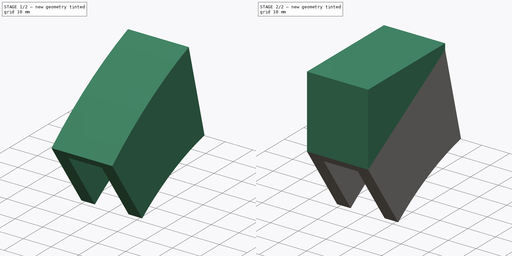
[diagram: build sequence overview — one tinted view per stage of 2, left to right]
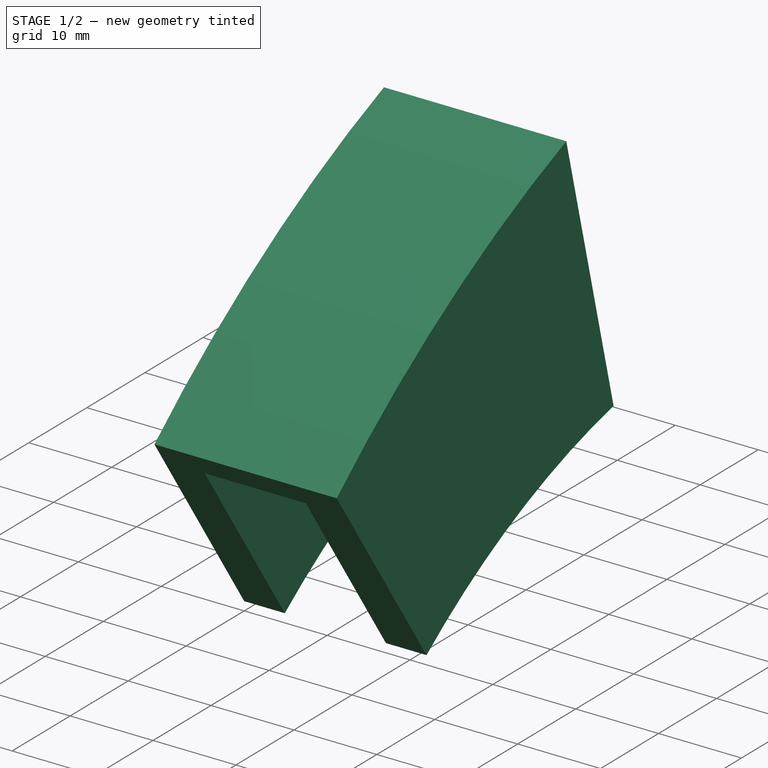
[diagram: stage 1 of 2 — iso view after this stage's code; geometry added in this stage tinted green]
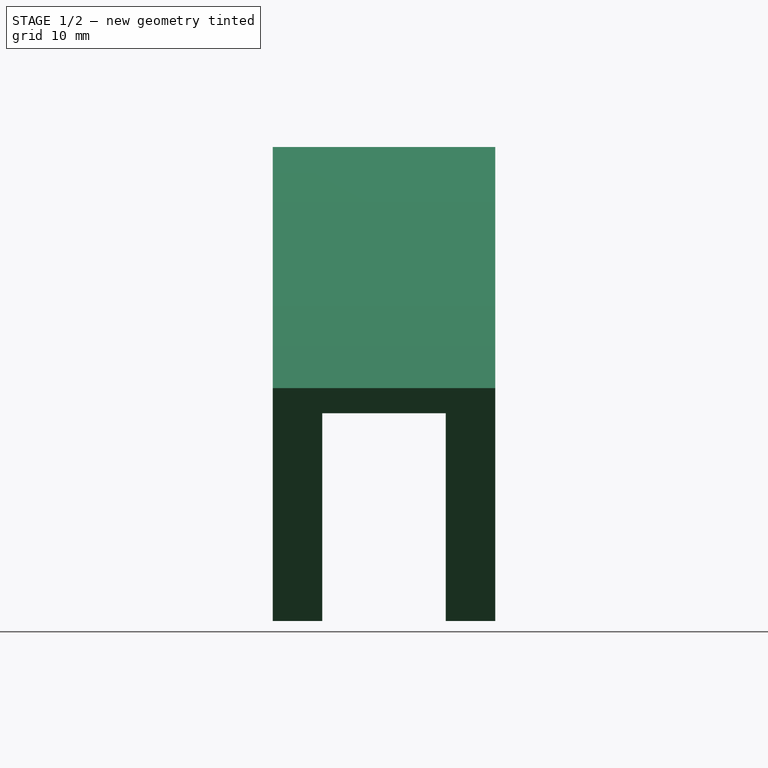
[diagram: stage 1 of 2 — front view after this stage's code; geometry added in this stage tinted green]
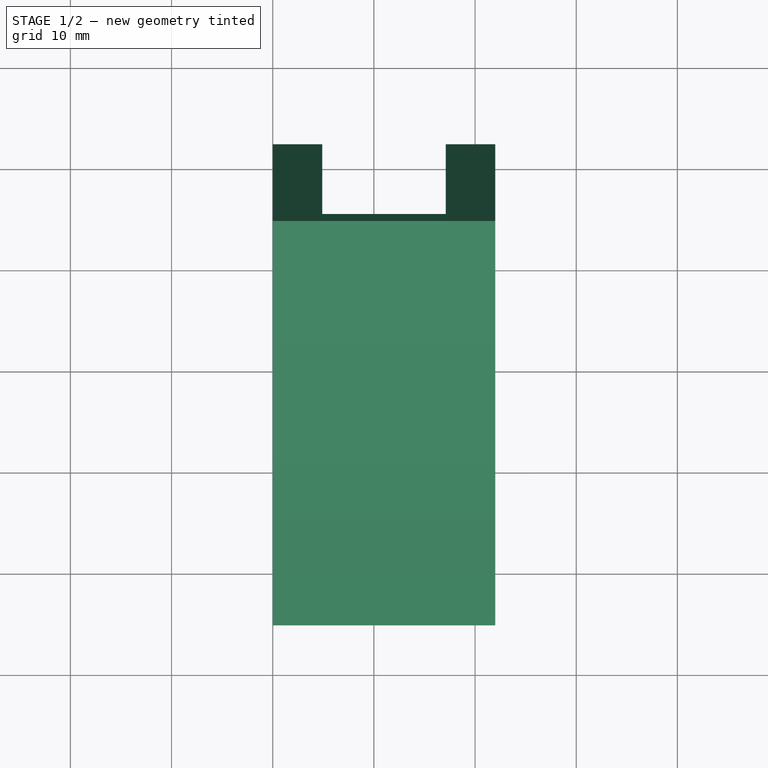
[diagram: stage 1 of 2 — top view after this stage's code; geometry added in this stage tinted green]
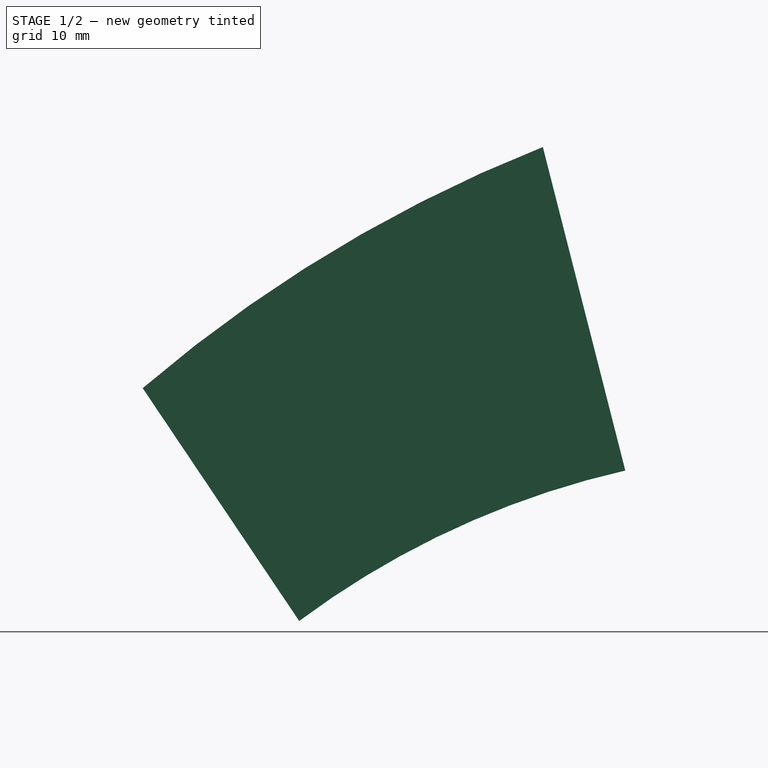
[diagram: stage 1 of 2 — right view after this stage's code; geometry added in this stage tinted green]
FCSTD DOCUMENT  (FreeCAD 0.22R38314 (Git))
Label: Phone Mount
License: All rights reserved
LicenseURL: https://en.wikipedia.org/wiki/All_rights_reserved
objects: Sketcher::SketchObject×3, PartDesign::Pad×2, Image::ImagePlane×1, PartDesign::Groove×1, PartDesign::Plane×1, PartDesign::Body×1
note: 14 computed .brp shape members not serialized (recipe doc carries the construction recipe); baked Part::Feature solids carry a one-line shape summary decoded from their .brp

FEATURE [Image::ImagePlane] _0240719_134937  label="20240719_134937"
  Placement = pos=(0,-5.1,-19.6) rot=(0.57735,0.57735,0.57735;2.0944rad)
  XSize = 227.12
  YSize = 170.34
FEATURE [Sketcher::SketchObject] Sketch
  AttachmentSupport = -> [YZ_Plane]
  FullyConstrained = true
  MapMode = 5
  Placement = pos=(0,0,0) rot=(0.57735,0.57735,0.57735;2.0944rad)
  sketch-geometry (4):
    g0: LineSegment StartX=7.1e-15 StartY=-17 StartZ=0 EndX=-15.47 EndY=6.01374 EndZ=0
    g1: ArcOfCircle CenterX=75.6456 CenterY=-100.462 CenterZ=0 NormalX=0 NormalY=0 NormalZ=1 AngleXU=0 Radius=140.14 StartAngle=1.94757 EndAngle=2.27861
    g2: ArcOfCircle CenterX=51.2839 CenterY=-85.7991 CenterZ=0 NormalX=0 NormalY=0 NormalZ=1 AngleXU=0 Radius=85.81 StartAngle=1.79464 EndAngle=2.21136
    g3: LineSegment StartX=32.2356 StartY=-2.13 StartZ=0 EndX=24.0843 EndY=29.8474 EndZ=0
  constraints (14):
    c: Coincident(g1,g0)
    c: Coincident(g2,g0)
    c: Distance(g0,g0) = 27.73
    c: Distance(g1,g2) = 33
    c: Distance(g0,g2) = 35.5
    c: Distance(g0,g1) = 46.18
    c: PointOnObject(g0,g-2)
    c: DistanceY(g0,g2) = 14.87
    c: Radius(g1) = 140.14
    c: Radius(g2) = 85.81
    c: Coincident(g3,g2)
    c: Coincident(g3,g1)
    c: DistanceY(g0,g-1) = 17
    c: DistanceX(g0,g-1) = 15.47
FEATURE [PartDesign::Pad] Pad
  Direction = (1,0,0)
  Length = 22
  Length2 = 10
  Placement = pos=(0,0,0) rot=(1,1,1;2.0944rad)
  Profile = -> Sketch
  ReferenceAxis = -> Sketch [N_Axis]
  Refine = true
  Suppressed = false
  Type = 0
FEATURE [Sketcher::SketchObject] Sketch001
  AttachmentOffset = pos=(0,0,0) rot=(0,0,1;-1.5708rad)
  AttachmentSupport = -> [Pad]
  ExternalGeometry = -> [Pad]
  FullyConstrained = true
  MapMode = 5
  Placement = pos=(5.8e-15,29.759,7.58574) rot=(0,0.613593,0.789622;3.14159rad)
  sketch-geometry (6):
    g0: LineSegment StartX=-17.1 StartY=-10.0264 StartZ=0 EndX=-4.9 EndY=-10.0264 EndZ=0
    g1: LineSegment StartX=-4.9 StartY=-10.0264 StartZ=0 EndX=-4.9 EndY=19.9736 EndZ=0
    g2: LineSegment StartX=-4.9 StartY=19.9736 StartZ=0 EndX=-17.1 EndY=19.9736 EndZ=0
    g3: LineSegment StartX=-17.1 StartY=19.9736 StartZ=0 EndX=-17.1 EndY=-10.0264 EndZ=0
    g4: LineSegment StartX=-17.1 StartY=19.9736 StartZ=0 EndX=-22 EndY=19.9736 EndZ=0
    g5: LineSegment StartX=-4.9 StartY=19.9736 StartZ=0 EndX=8e-15 EndY=19.9736 EndZ=0
  constraints (18):
    c: Coincident(g0,g1)
    c: Coincident(g1,g2)
    c: Coincident(g2,g3)
    c: Coincident(g3,g0)
    c: Horizontal(g0)
    c: Horizontal(g2)
    c: Vertical(g1)
    c: Vertical(g3)
    c: PointOnObject(g0,g-6)
    c: DistanceX(g2,g2) = 12.2
    c: Coincident(g4,g2)
    c: PointOnObject(g4,g-3)
    c: Horizontal(g4)
    c: Coincident(g5,g1)
    c: PointOnObject(g5,g-5)
    c: Horizontal(g5)
    c: Equal(g4,g5)
    c: Distance(g-4,g2) = 3
FEATURE [PartDesign::Groove] Groove
  Angle = 360
  Angle2 = 60
  Axis = (1,0,3e-16)
  Base = (3.35e-14,75.6456,-100.462)
  BaseFeature = -> Pad
  Placement = pos=(0,0,0) rot=(1,1,1;2.0944rad)
  Profile = -> Sketch001
  ReferenceAxis = -> Pad [Edge6]
  Refine = true
  Reversed = true
  Suppressed = false
  Type = 0
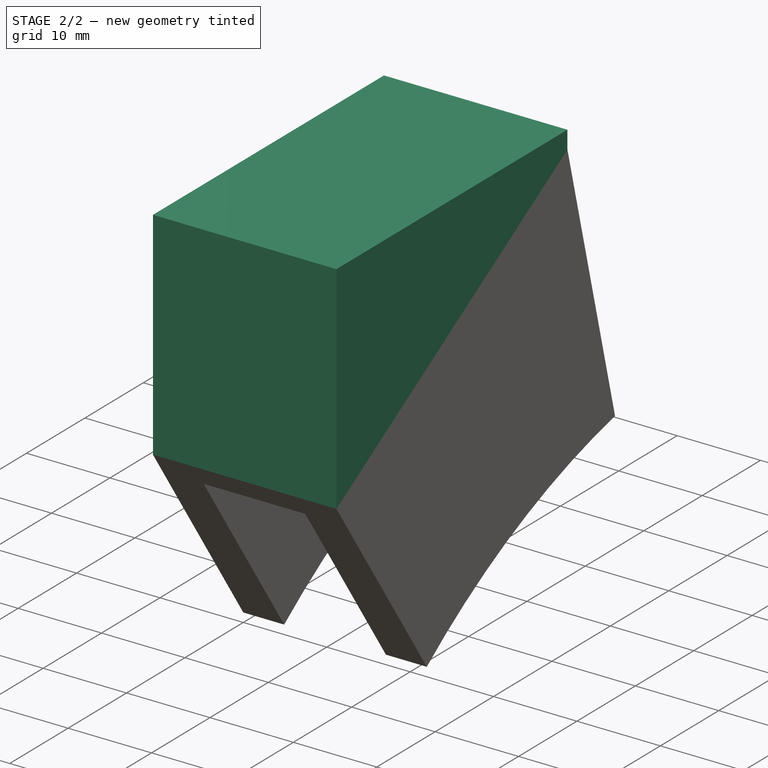
[diagram: stage 2 of 2 — iso view after this stage's code; geometry added in this stage tinted green]
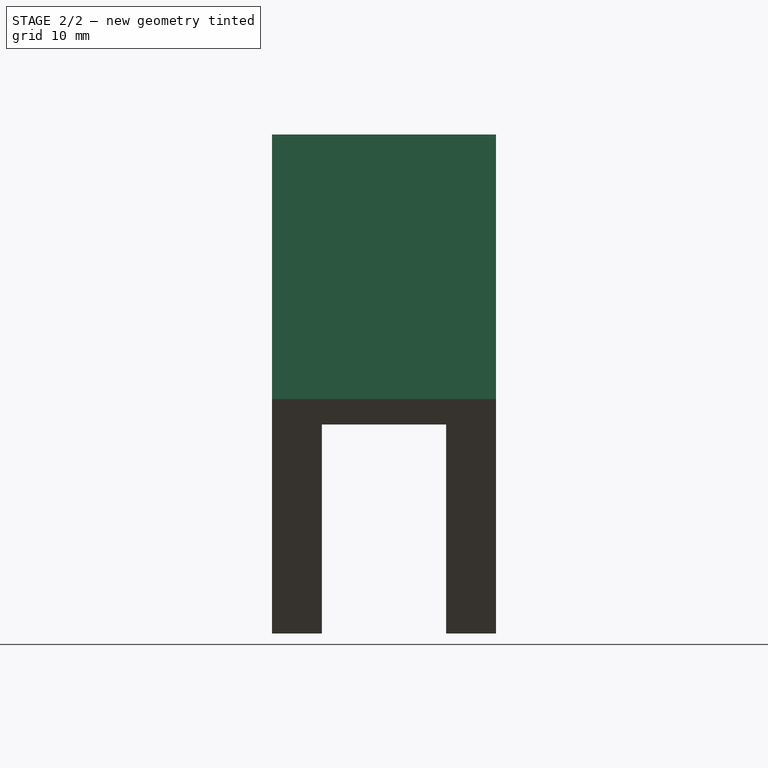
[diagram: stage 2 of 2 — front view after this stage's code; geometry added in this stage tinted green]
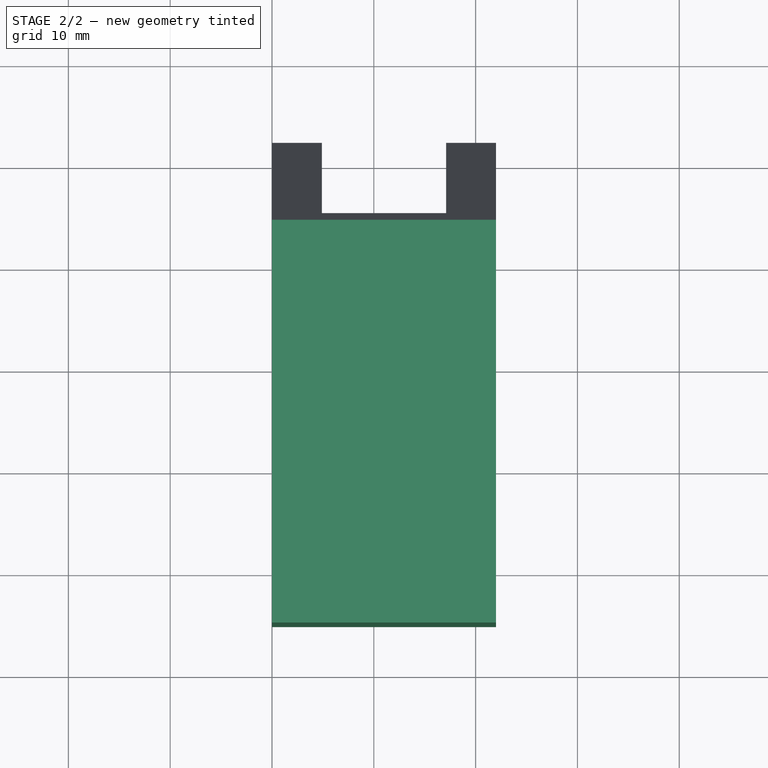
[diagram: stage 2 of 2 — top view after this stage's code; geometry added in this stage tinted green]
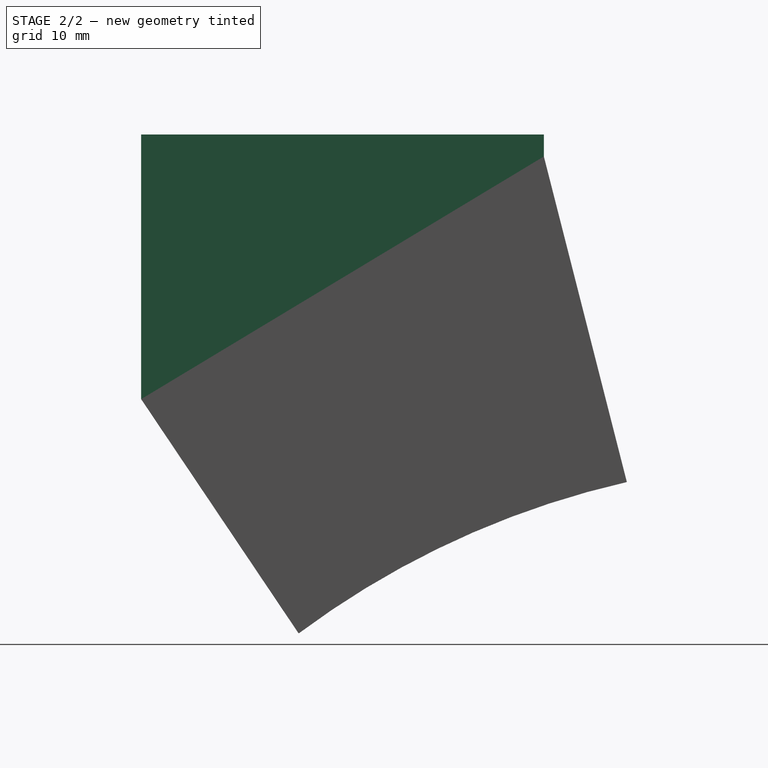
[diagram: stage 2 of 2 — right view after this stage's code; geometry added in this stage tinted green]
FEATURE [PartDesign::Plane] DatumPlane
  AttachmentOffset = pos=(0,0,32) rot=(0,0,1;0rad)
  AttachmentSupport = -> [XY_Plane]
  Length = 60.6991
  MapMode = 2
  Placement = pos=(0,0,32) rot=(0,0,1;0rad)
  ResizeMode = 0
  Width = 67.9347
FEATURE [Sketcher::SketchObject] Sketch002
  AttachmentSupport = -> [DatumPlane]
  ExternalGeometry = -> [Groove]
  FullyConstrained = true
  MapMode = 5
  Placement = pos=(0,0,32) rot=(0,0,1;0rad)
  sketch-geometry (4):
    g0: LineSegment StartX=0 StartY=24.0843 StartZ=0 EndX=0 EndY=-15.47 EndZ=0
    g1: LineSegment StartX=0 StartY=-15.47 StartZ=0 EndX=22 EndY=-15.47 EndZ=0
    g2: LineSegment StartX=22 StartY=-15.47 StartZ=0 EndX=22 EndY=24.0843 EndZ=0
    g3: LineSegment StartX=22 StartY=24.0843 StartZ=0 EndX=0 EndY=24.0843 EndZ=0
  constraints (10):
    c: Coincident(g0,g1)
    c: Coincident(g1,g2)
    c: Coincident(g2,g3)
    c: Coincident(g3,g0)
    c: Vertical(g0)
    c: Vertical(g2)
    c: Horizontal(g1)
    c: Horizontal(g3)
    c: Coincident(g0,g-4)
    c: Coincident(g1,g-6)
FEATURE [PartDesign::Pad] Pad001
  BaseFeature = -> Groove
  Direction = (0,0,1)
  Length = 10
  Length2 = 10
  Placement = pos=(0,0,0) rot=(1,1,1;2.0944rad)
  Profile = -> Sketch002
  ReferenceAxis = -> Sketch002 [N_Axis]
  Refine = true
  Suppressed = false
  Type = 3
  UpToFace = -> Groove [Face3]
FEATURE [PartDesign::Body] Body
  AllowCompound = false
  Group = -> [Sketch,Pad,Sketch001,Groove,DatumPlane,Sketch002,Pad001]
  Origin = -> Origin
  Tip = -> Pad001
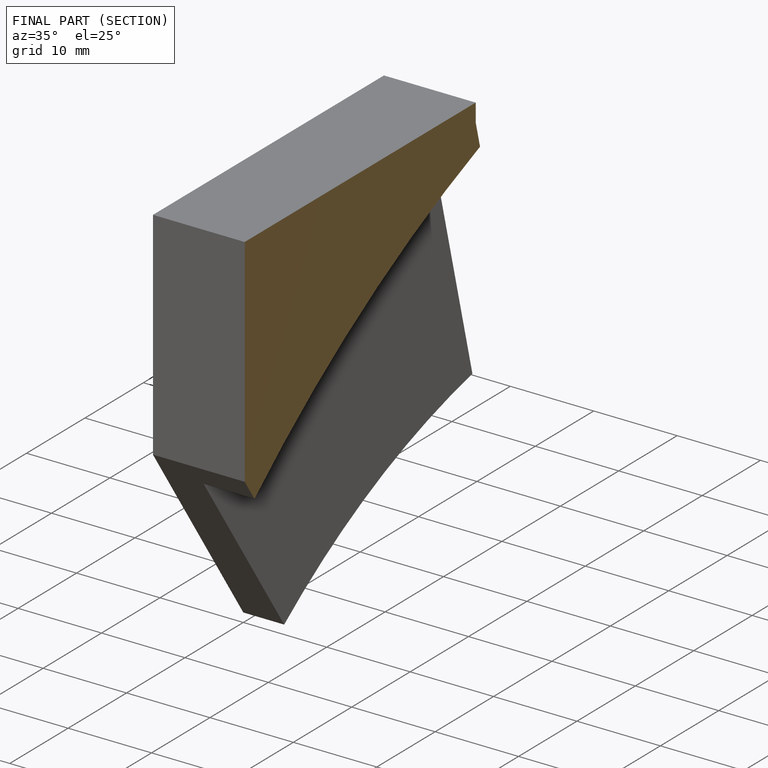
[diagram: finished part — half-section view (interior)]
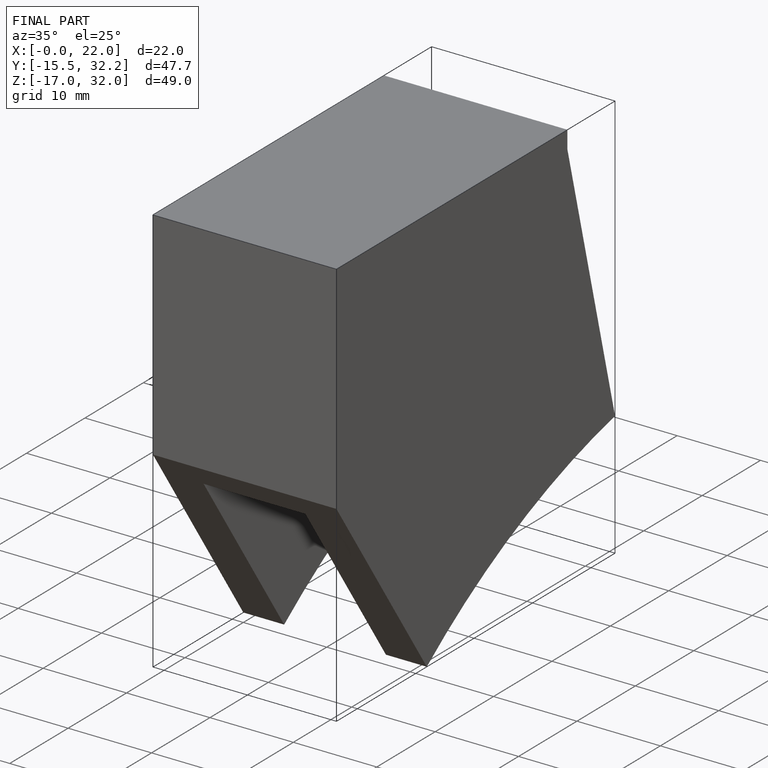
[diagram: finished part — iso view with bounding-box wireframe]
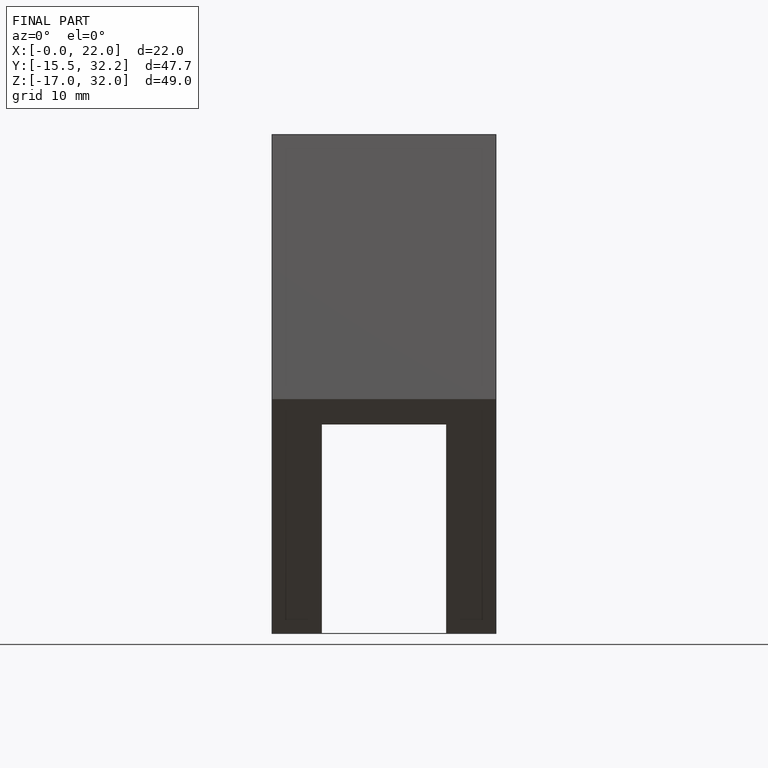
[diagram: finished part — front view with bounding-box wireframe]
